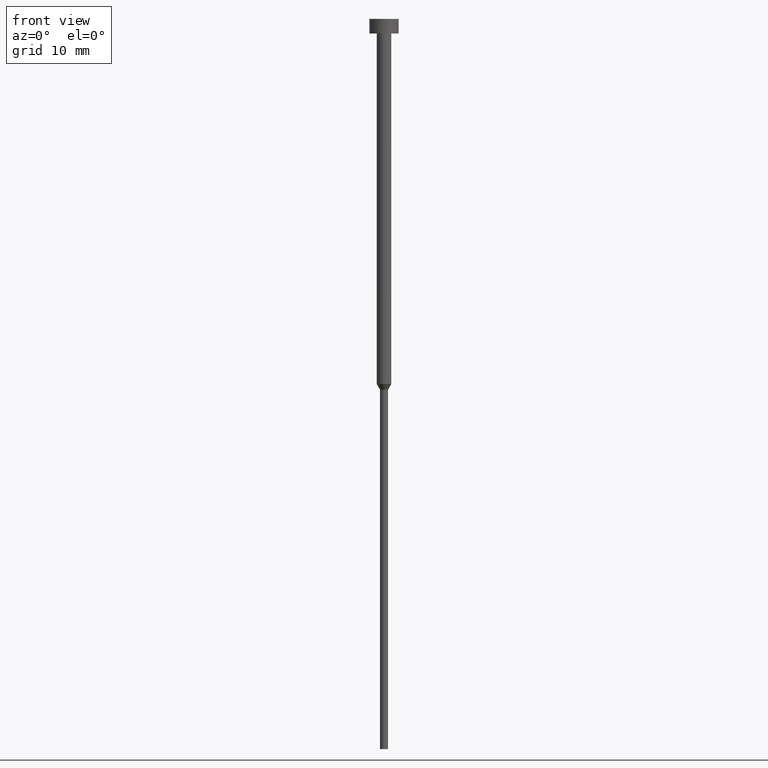
[diagram: clean part render]
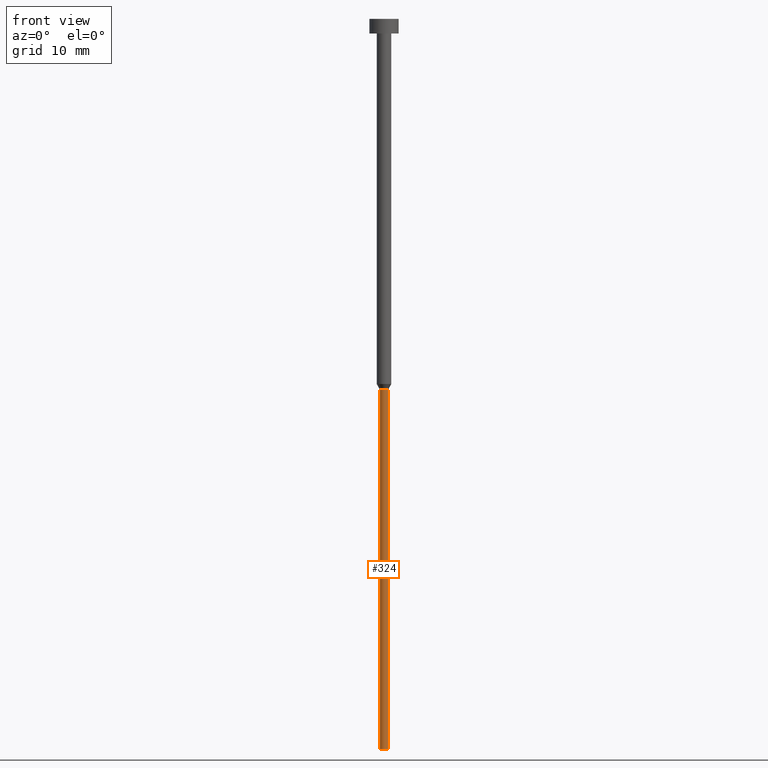
[diagram: same view with one face highlighted and labeled with its STEP entity id]
A machine part, front view. The second image highlights one B-rep face of the part: STEP entity #324.
In plain terms, the highlighted cylindrical surface (edge-blend (fillet) strip) has radius 0.55 mm, axis along (-0, -0, 1).
Its self-contained STEP definition (entity closure, byte-faithful):
#24 = CARTESIAN_POINT ( 'NONE',  ( 0.000000000000000000, 0.000000000000000000, -50.77942286340599765 ) ) ;
#28 = LINE ( 'NONE', #115, #163 ) ;
#29 = DIRECTION ( 'NONE',  ( -0.000000000000000000, -0.000000000000000000, 1.000000000000000000 ) ) ;
#30 = CARTESIAN_POINT ( 'NONE',  ( 0.000000000000000000, 0.000000000000000000, -100.0000000000000000 ) ) ;
#36 = FACE_OUTER_BOUND ( 'NONE', #201, .T. ) ;
#37 = DIRECTION ( 'NONE',  ( -0.000000000000000000, -0.000000000000000000, 1.000000000000000000 ) ) ;
#38 = AXIS2_PLACEMENT_3D ( 'NONE', #30, #29, #330 ) ;
#50 = ORIENTED_EDGE ( 'NONE', *, *, #288, .T. ) ;
#55 = VERTEX_POINT ( 'NONE', #219 ) ;
#78 = DIRECTION ( 'NONE',  ( 1.000000000000000000, 0.000000000000000000, 0.000000000000000000 ) ) ;
#86 = CIRCLE ( 'NONE', #291, 0.5500000000000000444 ) ;
#95 = AXIS2_PLACEMENT_3D ( 'NONE', #285, #37, #340 ) ;
#102 = EDGE_CURVE ( 'NONE', #250, #301, #239, .T. ) ;
#111 = EDGE_CURVE ( 'NONE', #173, #55, #86, .T. ) ;
#115 = CARTESIAN_POINT ( 'NONE',  ( 0.5499999999999999334, 0.000000000000000000, 0.000000000000000000 ) ) ;
#118 = DIRECTION ( 'NONE',  ( -0.000000000000000000, -0.000000000000000000, 1.000000000000000000 ) ) ;
#130 = EDGE_CURVE ( 'NONE', #250, #173, #254, .T. ) ;
#152 = CARTESIAN_POINT ( 'NONE',  ( -0.5500000000000000444, 6.735557395310442516E-17, -50.77942286340599765 ) ) ;
#153 = CYLINDRICAL_SURFACE ( 'NONE', #95, 0.5499999999999999334 ) ;
#163 = VECTOR ( 'NONE', #227, 1000.000000000000000 ) ;
#173 = VERTEX_POINT ( 'NONE', #152 ) ;
#176 = DIRECTION ( 'NONE',  ( -0.000000000000000000, -0.000000000000000000, 1.000000000000000000 ) ) ;
#188 = VECTOR ( 'NONE', #118, 1000.000000000000000 ) ;
#193 = CARTESIAN_POINT ( 'NONE',  ( -0.5499999999999999334, 6.735557395310441284E-17, -100.0000000000000000 ) ) ;
#201 = EDGE_LOOP ( 'NONE', ( #332, #248, #50, #306 ) ) ;
#219 = CARTESIAN_POINT ( 'NONE',  ( 0.5500000000000000444, 0.000000000000000000, -50.77942286340599765 ) ) ;
#227 = DIRECTION ( 'NONE',  ( -0.000000000000000000, -0.000000000000000000, 1.000000000000000000 ) ) ;
#239 = CIRCLE ( 'NONE', #38, 0.5499999999999999334 ) ;
#248 = ORIENTED_EDGE ( 'NONE', *, *, #102, .T. ) ;
#250 = VERTEX_POINT ( 'NONE', #193 ) ;
#254 = LINE ( 'NONE', #275, #188 ) ;
#259 = CARTESIAN_POINT ( 'NONE',  ( 0.5499999999999999334, 0.000000000000000000, -100.0000000000000000 ) ) ;
#275 = CARTESIAN_POINT ( 'NONE',  ( -0.5499999999999999334, 6.735557395310441284E-17, 0.000000000000000000 ) ) ;
#285 = CARTESIAN_POINT ( 'NONE',  ( 0.000000000000000000, 0.000000000000000000, 0.000000000000000000 ) ) ;
#288 = EDGE_CURVE ( 'NONE', #301, #55, #28, .T. ) ;
#291 = AXIS2_PLACEMENT_3D ( 'NONE', #24, #176, #78 ) ;
#301 = VERTEX_POINT ( 'NONE', #259 ) ;
#306 = ORIENTED_EDGE ( 'NONE', *, *, #111, .F. ) ;
#324 = ADVANCED_FACE ( 'NONE', ( #36 ), #153, .T. ) ;
#330 = DIRECTION ( 'NONE',  ( 1.000000000000000000, 0.000000000000000000, 0.000000000000000000 ) ) ;
#332 = ORIENTED_EDGE ( 'NONE', *, *, #130, .F. ) ;
#340 = DIRECTION ( 'NONE',  ( 1.000000000000000000, 0.000000000000000000, 0.000000000000000000 ) ) ;